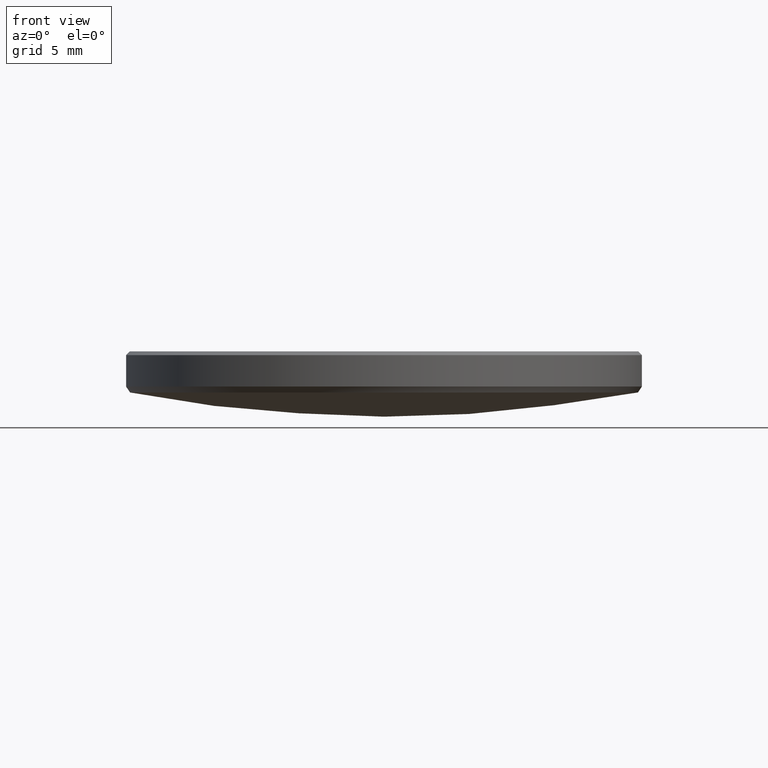
[diagram: clean part render]
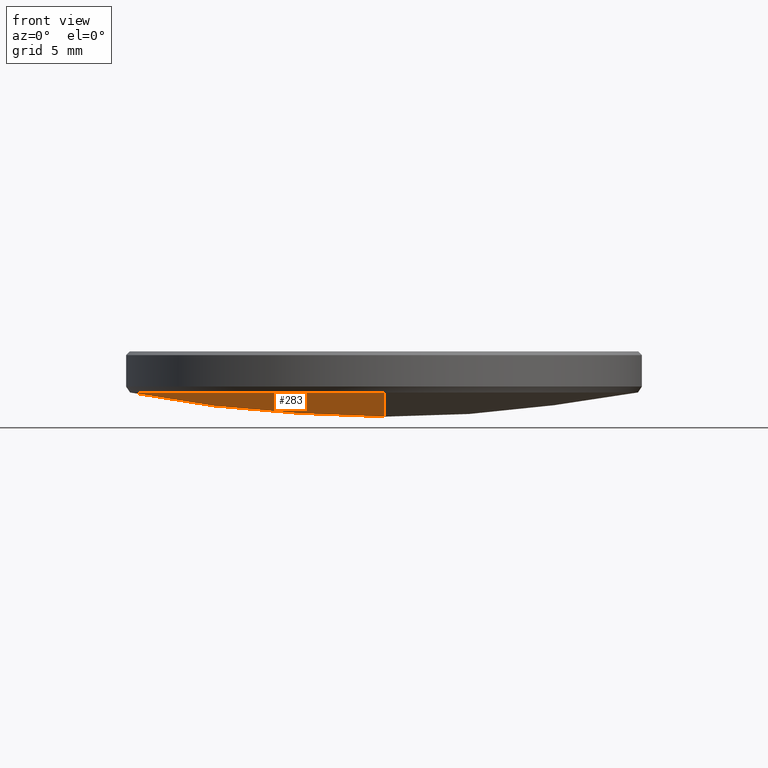
[diagram: same view with one face highlighted and labeled with its STEP entity id]
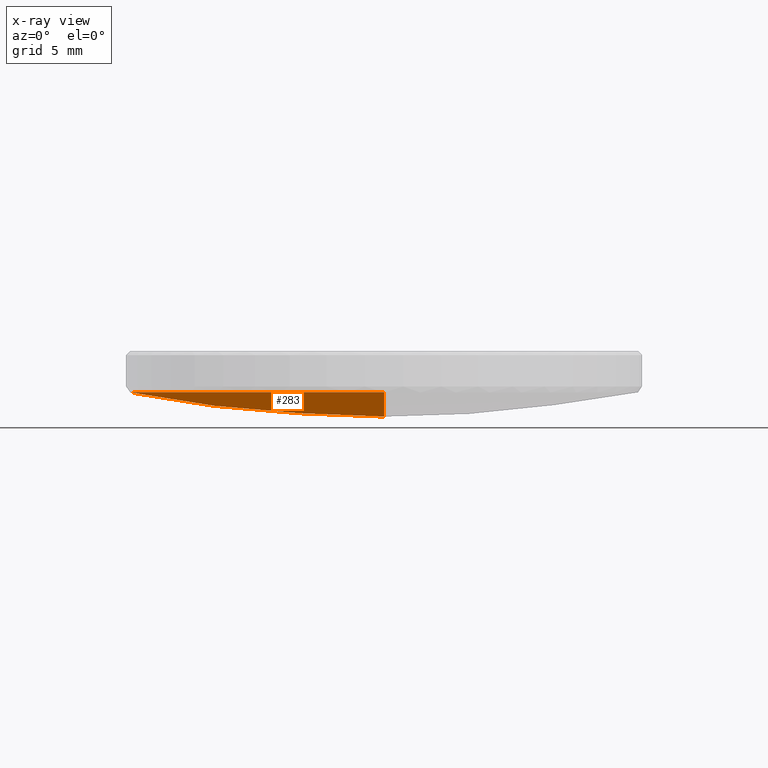
[diagram: x-ray of the same camera — body ghosted, the highlighted face saturated]
A machine part, front view. The second image highlights one B-rep face of the part: STEP entity #283.
The next image is the same camera in x-ray: the body ghosted, the highlighted face saturated — about 0% of this face is hidden behind the body in this view.
In plain terms, the highlighted spherical surface has radius 66.15 mm.
Its self-contained STEP definition (entity closure, byte-faithful):
#2 = EDGE_CURVE ( 'NONE', #231, #234, #198, .T. ) ;
#7 = CARTESIAN_POINT ( 'NONE',  ( 0.000000000000000000, 4.050519288179870232E-15, 2.769430835459427254 ) ) ;
#10 = AXIS2_PLACEMENT_3D ( 'NONE', #112, #277, #324 ) ;
#15 = DIRECTION ( 'NONE',  ( 1.000000000000000000, -0.000000000000000000, 0.000000000000000000 ) ) ;
#22 = FACE_OUTER_BOUND ( 'NONE', #129, .T. ) ;
#33 = SPHERICAL_SURFACE ( 'NONE', #10, 66.15000000000000568 ) ;
#46 = CARTESIAN_POINT ( 'NONE',  ( 0.000000000000000000, 0.000000000000000000, 3.961956115965656444 ) ) ;
#50 = CIRCLE ( 'NONE', #153, 12.50395849586555030 ) ;
#69 = EDGE_CURVE ( 'NONE', #234, #158, #50, .T. ) ;
#91 = EDGE_CURVE ( 'NONE', #253, #231, #308, .T. ) ;
#94 = ORIENTED_EDGE ( 'NONE', *, *, #69, .T. ) ;
#99 = DIRECTION ( 'NONE',  ( 1.000000000000000000, 0.000000000000000000, 0.000000000000000000 ) ) ;
#112 = CARTESIAN_POINT ( 'NONE',  ( 0.000000000000000000, 0.000000000000000000, 68.91943083545942272 ) ) ;
#119 = AXIS2_PLACEMENT_3D ( 'NONE', #245, #226, #99 ) ;
#120 = DIRECTION ( 'NONE',  ( -1.224646799147352961E-16, -1.000000000000000000, 0.000000000000000000 ) ) ;
#121 = ORIENTED_EDGE ( 'NONE', *, *, #91, .T. ) ;
#126 = AXIS2_PLACEMENT_3D ( 'NONE', #172, #142, #120 ) ;
#128 = CIRCLE ( 'NONE', #312, 66.15000000000000568 ) ;
#129 = EDGE_LOOP ( 'NONE', ( #320, #121, #147, #94 ) ) ;
#138 = CARTESIAN_POINT ( 'NONE',  ( -12.50395849586555030, 1.543297354890224221E-15, 3.961956115965656444 ) ) ;
#142 = DIRECTION ( 'NONE',  ( -1.000000000000000000, 1.224646799147353207E-16, 0.000000000000000000 ) ) ;
#146 = CARTESIAN_POINT ( 'NONE',  ( 0.000000000000000000, 0.000000000000000000, 68.91943083545942272 ) ) ;
#147 = ORIENTED_EDGE ( 'NONE', *, *, #2, .T. ) ;
#153 = AXIS2_PLACEMENT_3D ( 'NONE', #46, #251, #230 ) ;
#158 = VERTEX_POINT ( 'NONE', #292 ) ;
#172 = CARTESIAN_POINT ( 'NONE',  ( 0.000000000000000000, 0.000000000000000000, 68.91943083545942272 ) ) ;
#188 = EDGE_CURVE ( 'NONE', #253, #158, #128, .T. ) ;
#193 = CARTESIAN_POINT ( 'NONE',  ( -1.531293274863309419E-15, -12.50395849586554675, 3.961956115965656444 ) ) ;
#198 = CIRCLE ( 'NONE', #119, 12.50395849586555030 ) ;
#226 = DIRECTION ( 'NONE',  ( 0.000000000000000000, 0.000000000000000000, -1.000000000000000000 ) ) ;
#227 = DIRECTION ( 'NONE',  ( 0.000000000000000000, 0.000000000000000000, -1.000000000000000000 ) ) ;
#230 = DIRECTION ( 'NONE',  ( 1.000000000000000000, 0.000000000000000000, 0.000000000000000000 ) ) ;
#231 = VERTEX_POINT ( 'NONE', #193 ) ;
#234 = VERTEX_POINT ( 'NONE', #138 ) ;
#245 = CARTESIAN_POINT ( 'NONE',  ( 0.000000000000000000, 0.000000000000000000, 3.961956115965656444 ) ) ;
#251 = DIRECTION ( 'NONE',  ( 0.000000000000000000, 0.000000000000000000, -1.000000000000000000 ) ) ;
#253 = VERTEX_POINT ( 'NONE', #7 ) ;
#277 = DIRECTION ( 'NONE',  ( -1.000000000000000000, 0.000000000000000000, 0.000000000000000000 ) ) ;
#283 = ADVANCED_FACE ( 'NONE', ( #22 ), #33, .T. ) ;
#292 = CARTESIAN_POINT ( 'NONE',  ( 0.000000000000000000, 12.50395849586554675, 3.961956115965656444 ) ) ;
#308 = CIRCLE ( 'NONE', #126, 66.15000000000000568 ) ;
#312 = AXIS2_PLACEMENT_3D ( 'NONE', #146, #15, #227 ) ;
#320 = ORIENTED_EDGE ( 'NONE', *, *, #188, .F. ) ;
#324 = DIRECTION ( 'NONE',  ( 0.000000000000000000, 1.000000000000000000, 0.000000000000000000 ) ) ;